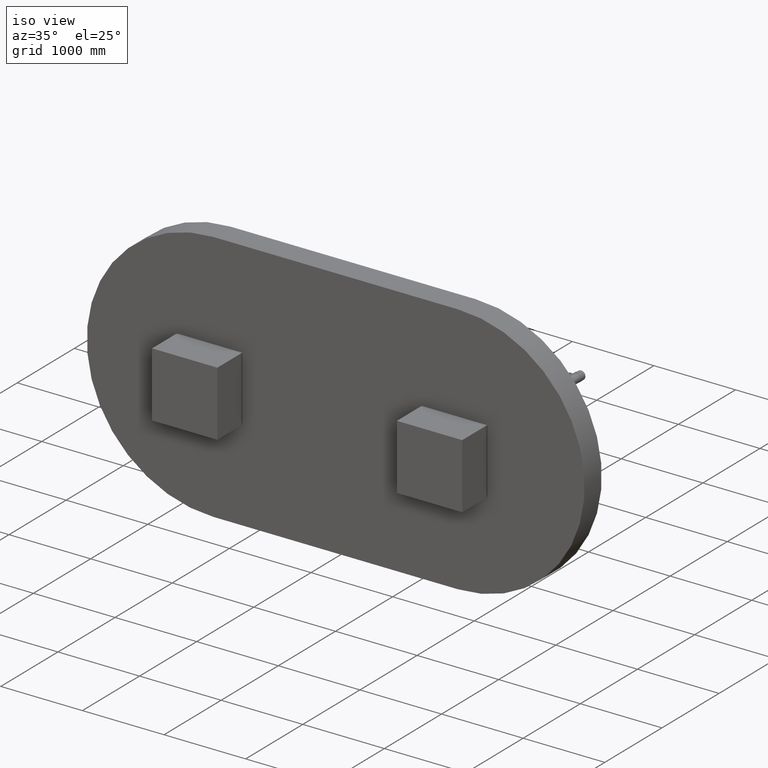
[diagram: clean part render]
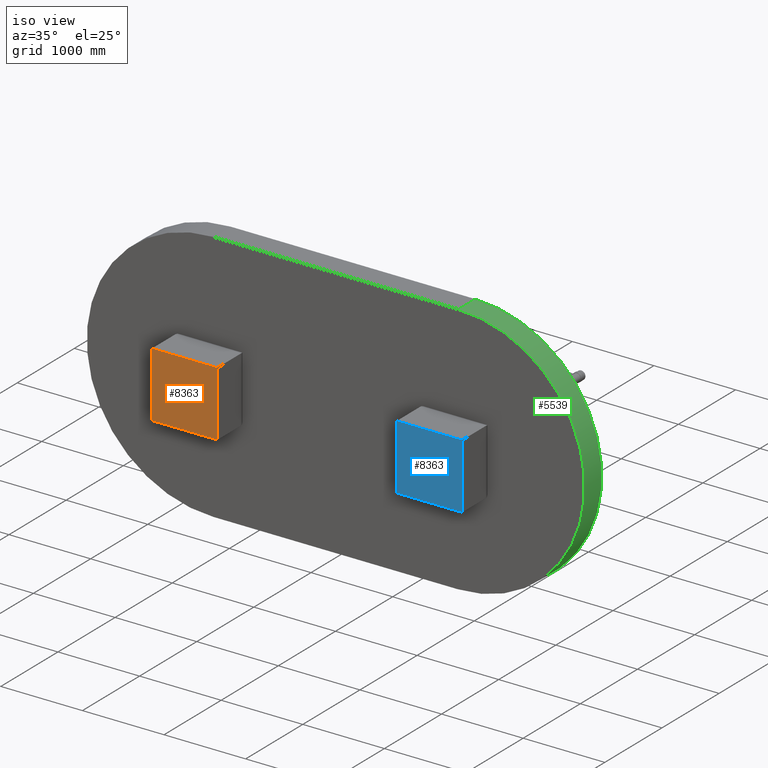
[diagram: same view with three faces highlighted in distinct colors, each labeled with its STEP entity id]
A machine part, iso view with three faces highlighted in distinct colors.
Their STEP definitions:

[orange] entity #8363 — the highlighted planar face has unit normal (0, 1, 0).
#1415 = DIRECTION ( 'NONE',  ( -0.0000000000000000000, 1.224646799147353500E-016, -1.000000000000000000 ) ) ;
#1575 = CARTESIAN_POINT ( 'NONE',  ( 0.0000000000000000000, 0.0000000000000000000, 0.0000000000000000000 ) ) ;
#1592 = DIRECTION ( 'NONE',  ( 0.0000000000000000000, -1.224646799147353500E-016, 1.000000000000000000 ) ) ;
#1613 = DIRECTION ( 'NONE',  ( -0.0000000000000000000, 1.000000000000000000, 1.224646799147353500E-016 ) ) ;
#1629 = PLANE ( 'NONE',  #15796 ) ;
#1743 = CARTESIAN_POINT ( 'NONE',  ( 800.0000000000000000, 0.0000000000000000000, 0.0000000000000000000 ) ) ;
#1781 = VERTEX_POINT ( 'NONE', #7443 ) ;
#3352 = ORIENTED_EDGE ( 'NONE', *, *, #6494, .F. ) ;
#4082 = EDGE_CURVE ( 'NONE', #1781, #6001, #6338, .T. ) ;
#4085 = VECTOR ( 'NONE', #5986, 1000.000000000000000 ) ;
#5003 = CARTESIAN_POINT ( 'NONE',  ( 0.0000000000000000000, 0.0000000000000000000, 0.0000000000000000000 ) ) ;
#5012 = VERTEX_POINT ( 'NONE', #5003 ) ;
#5986 = DIRECTION ( 'NONE',  ( -0.0000000000000000000, 1.224646799147353500E-016, -1.000000000000000000 ) ) ;
#6001 = VERTEX_POINT ( 'NONE', #6661 ) ;
#6338 = LINE ( 'NONE', #11311, #13363 ) ;
#6494 = EDGE_CURVE ( 'NONE', #12274, #5012, #15634, .T. ) ;
#6661 = CARTESIAN_POINT ( 'NONE',  ( 0.0000000000000000000, -9.797174393178827000E-014, 800.0000000000000000 ) ) ;
#6980 = EDGE_CURVE ( 'NONE', #6001, #5012, #10533, .T. ) ;
#7350 = ORIENTED_EDGE ( 'NONE', *, *, #4082, .T. ) ;
#7443 = CARTESIAN_POINT ( 'NONE',  ( 800.0000000000000000, -9.797174393178827000E-014, 800.0000000000000000 ) ) ;
#7896 = LINE ( 'NONE', #15485, #4085 ) ;
#8363 = ADVANCED_FACE ( 'NONE', ( #17935 ), #1629, .F. ) ;
#9341 = ORIENTED_EDGE ( 'NONE', *, *, #6980, .T. ) ;
#9972 = DIRECTION ( 'NONE',  ( -1.000000000000000000, -0.0000000000000000000, -0.0000000000000000000 ) ) ;
#10533 = LINE ( 'NONE', #1575, #17337 ) ;
#10647 = DIRECTION ( 'NONE',  ( -1.000000000000000000, -0.0000000000000000000, -0.0000000000000000000 ) ) ;
#10665 = CARTESIAN_POINT ( 'NONE',  ( 800.0000000000000000, 0.0000000000000000000, 0.0000000000000000000 ) ) ;
#11311 = CARTESIAN_POINT ( 'NONE',  ( 800.0000000000000000, -9.797174393178827000E-014, 800.0000000000000000 ) ) ;
#12274 = VERTEX_POINT ( 'NONE', #13653 ) ;
#12727 = EDGE_LOOP ( 'NONE', ( #9341, #3352, #18021, #7350 ) ) ;
#13350 = VECTOR ( 'NONE', #10647, 1000.000000000000000 ) ;
#13363 = VECTOR ( 'NONE', #9972, 1000.000000000000000 ) ;
#13653 = CARTESIAN_POINT ( 'NONE',  ( 800.0000000000000000, 0.0000000000000000000, 0.0000000000000000000 ) ) ;
#15485 = CARTESIAN_POINT ( 'NONE',  ( 800.0000000000000000, 0.0000000000000000000, 0.0000000000000000000 ) ) ;
#15634 = LINE ( 'NONE', #10665, #13350 ) ;
#15796 = AXIS2_PLACEMENT_3D ( 'NONE', #1743, #1613, #1592 ) ;
#16651 = EDGE_CURVE ( 'NONE', #1781, #12274, #7896, .T. ) ;
#17337 = VECTOR ( 'NONE', #1415, 1000.000000000000000 ) ;
#17935 = FACE_OUTER_BOUND ( 'NONE', #12727, .T. ) ;
#18021 = ORIENTED_EDGE ( 'NONE', *, *, #16651, .F. ) ;

[blue] entity #8363 — the highlighted planar face has unit normal (0, 1, 0).
#1415 = DIRECTION ( 'NONE',  ( -0.0000000000000000000, 1.224646799147353500E-016, -1.000000000000000000 ) ) ;
#1575 = CARTESIAN_POINT ( 'NONE',  ( 0.0000000000000000000, 0.0000000000000000000, 0.0000000000000000000 ) ) ;
#1592 = DIRECTION ( 'NONE',  ( 0.0000000000000000000, -1.224646799147353500E-016, 1.000000000000000000 ) ) ;
#1613 = DIRECTION ( 'NONE',  ( -0.0000000000000000000, 1.000000000000000000, 1.224646799147353500E-016 ) ) ;
#1629 = PLANE ( 'NONE',  #15796 ) ;
#1743 = CARTESIAN_POINT ( 'NONE',  ( 800.0000000000000000, 0.0000000000000000000, 0.0000000000000000000 ) ) ;
#1781 = VERTEX_POINT ( 'NONE', #7443 ) ;
#3352 = ORIENTED_EDGE ( 'NONE', *, *, #6494, .F. ) ;
#4082 = EDGE_CURVE ( 'NONE', #1781, #6001, #6338, .T. ) ;
#4085 = VECTOR ( 'NONE', #5986, 1000.000000000000000 ) ;
#5003 = CARTESIAN_POINT ( 'NONE',  ( 0.0000000000000000000, 0.0000000000000000000, 0.0000000000000000000 ) ) ;
#5012 = VERTEX_POINT ( 'NONE', #5003 ) ;
#5986 = DIRECTION ( 'NONE',  ( -0.0000000000000000000, 1.224646799147353500E-016, -1.000000000000000000 ) ) ;
#6001 = VERTEX_POINT ( 'NONE', #6661 ) ;
#6338 = LINE ( 'NONE', #11311, #13363 ) ;
#6494 = EDGE_CURVE ( 'NONE', #12274, #5012, #15634, .T. ) ;
#6661 = CARTESIAN_POINT ( 'NONE',  ( 0.0000000000000000000, -9.797174393178827000E-014, 800.0000000000000000 ) ) ;
#6980 = EDGE_CURVE ( 'NONE', #6001, #5012, #10533, .T. ) ;
#7350 = ORIENTED_EDGE ( 'NONE', *, *, #4082, .T. ) ;
#7443 = CARTESIAN_POINT ( 'NONE',  ( 800.0000000000000000, -9.797174393178827000E-014, 800.0000000000000000 ) ) ;
#7896 = LINE ( 'NONE', #15485, #4085 ) ;
#8363 = ADVANCED_FACE ( 'NONE', ( #17935 ), #1629, .F. ) ;
#9341 = ORIENTED_EDGE ( 'NONE', *, *, #6980, .T. ) ;
#9972 = DIRECTION ( 'NONE',  ( -1.000000000000000000, -0.0000000000000000000, -0.0000000000000000000 ) ) ;
#10533 = LINE ( 'NONE', #1575, #17337 ) ;
#10647 = DIRECTION ( 'NONE',  ( -1.000000000000000000, -0.0000000000000000000, -0.0000000000000000000 ) ) ;
#10665 = CARTESIAN_POINT ( 'NONE',  ( 800.0000000000000000, 0.0000000000000000000, 0.0000000000000000000 ) ) ;
#11311 = CARTESIAN_POINT ( 'NONE',  ( 800.0000000000000000, -9.797174393178827000E-014, 800.0000000000000000 ) ) ;
#12274 = VERTEX_POINT ( 'NONE', #13653 ) ;
#12727 = EDGE_LOOP ( 'NONE', ( #9341, #3352, #18021, #7350 ) ) ;
#13350 = VECTOR ( 'NONE', #10647, 1000.000000000000000 ) ;
#13363 = VECTOR ( 'NONE', #9972, 1000.000000000000000 ) ;
#13653 = CARTESIAN_POINT ( 'NONE',  ( 800.0000000000000000, 0.0000000000000000000, 0.0000000000000000000 ) ) ;
#15485 = CARTESIAN_POINT ( 'NONE',  ( 800.0000000000000000, 0.0000000000000000000, 0.0000000000000000000 ) ) ;
#15634 = LINE ( 'NONE', #10665, #13350 ) ;
#15796 = AXIS2_PLACEMENT_3D ( 'NONE', #1743, #1613, #1592 ) ;
#16651 = EDGE_CURVE ( 'NONE', #1781, #12274, #7896, .T. ) ;
#17337 = VECTOR ( 'NONE', #1415, 1000.000000000000000 ) ;
#17935 = FACE_OUTER_BOUND ( 'NONE', #12727, .T. ) ;
#18021 = ORIENTED_EDGE ( 'NONE', *, *, #16651, .F. ) ;

[green] entity #5539 — the highlighted cylindrical surface (partial cylindrical patch) has radius 1550 mm, axis along (-0, -1, -0).
#347 = VERTEX_POINT ( 'NONE', #8980 ) ;
#859 = CARTESIAN_POINT ( 'NONE',  ( 3000.000000000000000, 300.0000000000000000, 1550.000000000000000 ) ) ;
#921 = DIRECTION ( 'NONE',  ( -0.0000000000000000000, -1.000000000000000000, -0.0000000000000000000 ) ) ;
#1808 = CIRCLE ( 'NONE', #7976, 1550.000000000000000 ) ;
#2277 = VECTOR ( 'NONE', #921, 1000.000000000000000 ) ;
#3013 = AXIS2_PLACEMENT_3D ( 'NONE', #15777, #15379, #15324 ) ;
#3243 = ORIENTED_EDGE ( 'NONE', *, *, #3421, .T. ) ;
#3421 = EDGE_CURVE ( 'NONE', #7923, #347, #13175, .T. ) ;
#3442 = EDGE_CURVE ( 'NONE', #347, #13343, #1808, .T. ) ;
#3479 = EDGE_CURVE ( 'NONE', #6747, #13343, #15473, .T. ) ;
#3525 = EDGE_CURVE ( 'NONE', #7923, #6747, #11458, .T. ) ;
#4766 = VECTOR ( 'NONE', #18034, 1000.000000000000000 ) ;
#5539 = ADVANCED_FACE ( 'NONE', ( #12659 ), #7584, .T. ) ;
#5942 = CARTESIAN_POINT ( 'NONE',  ( 3000.000000000000000, 300.0000000000000000, -1550.000000000000000 ) ) ;
#6747 = VERTEX_POINT ( 'NONE', #5942 ) ;
#6783 = ORIENTED_EDGE ( 'NONE', *, *, #3442, .T. ) ;
#7584 = CYLINDRICAL_SURFACE ( 'NONE', #8931, 1550.000000000000000 ) ;
#7923 = VERTEX_POINT ( 'NONE', #9889 ) ;
#7954 = DIRECTION ( 'NONE',  ( 0.0000000000000000000, 0.0000000000000000000, -1.000000000000000000 ) ) ;
#7976 = AXIS2_PLACEMENT_3D ( 'NONE', #15724, #9390, #11791 ) ;
#8931 = AXIS2_PLACEMENT_3D ( 'NONE', #11928, #10098, #7954 ) ;
#8980 = CARTESIAN_POINT ( 'NONE',  ( 3000.000000000000000, 0.0000000000000000000, 1550.000000000000000 ) ) ;
#9390 = DIRECTION ( 'NONE',  ( 0.0000000000000000000, 1.000000000000000000, 0.0000000000000000000 ) ) ;
#9889 = CARTESIAN_POINT ( 'NONE',  ( 3000.000000000000000, 300.0000000000000000, 1550.000000000000000 ) ) ;
#10098 = DIRECTION ( 'NONE',  ( -0.0000000000000000000, -1.000000000000000000, -0.0000000000000000000 ) ) ;
#11054 = ORIENTED_EDGE ( 'NONE', *, *, #3525, .F. ) ;
#11458 = CIRCLE ( 'NONE', #3013, 1550.000000000000000 ) ;
#11791 = DIRECTION ( 'NONE',  ( 0.0000000000000000000, 0.0000000000000000000, 1.000000000000000000 ) ) ;
#11928 = CARTESIAN_POINT ( 'NONE',  ( 3000.000000000000000, 300.0000000000000000, 0.0000000000000000000 ) ) ;
#12659 = FACE_OUTER_BOUND ( 'NONE', #15892, .T. ) ;
#13175 = LINE ( 'NONE', #859, #2277 ) ;
#13343 = VERTEX_POINT ( 'NONE', #17645 ) ;
#13520 = CARTESIAN_POINT ( 'NONE',  ( 3000.000000000000000, 300.0000000000000000, -1550.000000000000000 ) ) ;
#15324 = DIRECTION ( 'NONE',  ( 0.0000000000000000000, 0.0000000000000000000, 1.000000000000000000 ) ) ;
#15372 = ORIENTED_EDGE ( 'NONE', *, *, #3479, .F. ) ;
#15379 = DIRECTION ( 'NONE',  ( 0.0000000000000000000, 1.000000000000000000, 0.0000000000000000000 ) ) ;
#15473 = LINE ( 'NONE', #13520, #4766 ) ;
#15724 = CARTESIAN_POINT ( 'NONE',  ( 3000.000000000000000, 0.0000000000000000000, 0.0000000000000000000 ) ) ;
#15777 = CARTESIAN_POINT ( 'NONE',  ( 3000.000000000000000, 300.0000000000000000, 0.0000000000000000000 ) ) ;
#15892 = EDGE_LOOP ( 'NONE', ( #6783, #15372, #11054, #3243 ) ) ;
#17645 = CARTESIAN_POINT ( 'NONE',  ( 3000.000000000000000, 0.0000000000000000000, -1550.000000000000000 ) ) ;
#18034 = DIRECTION ( 'NONE',  ( -0.0000000000000000000, -1.000000000000000000, -0.0000000000000000000 ) ) ;